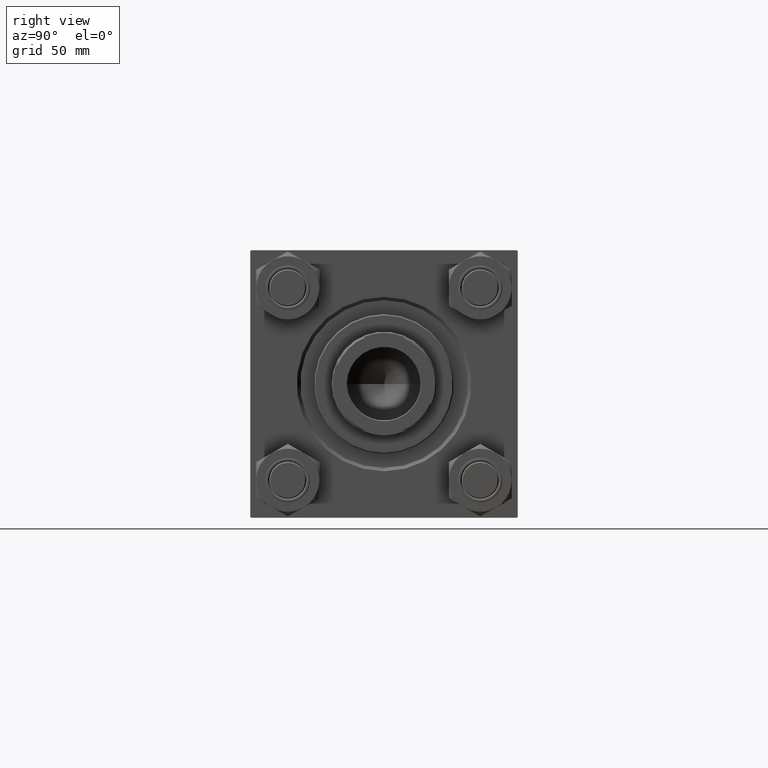
[diagram: clean part render]
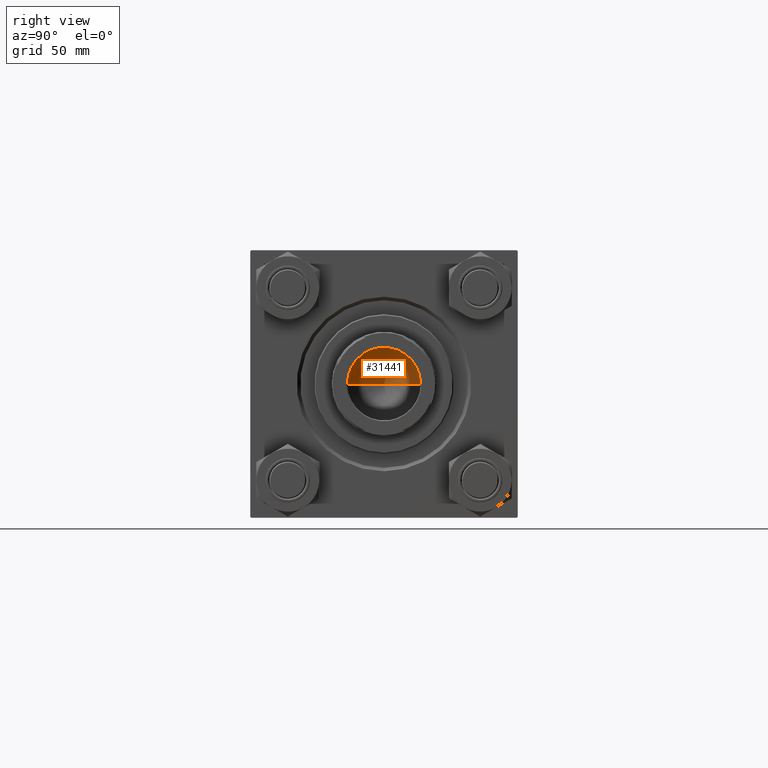
[diagram: same view with one face highlighted and labeled with its STEP entity id]
A machine part, right view. The second image highlights one B-rep face of the part: STEP entity #31441.
In plain terms, the highlighted conical surface has half-angle 59 deg.
Its self-contained STEP definition (entity closure, byte-faithful):
#1181 = VERTEX_POINT ( 'NONE', #6339 ) ;
#2189 = DIRECTION ( 'NONE',  ( -0.000000000000000000, -0.000000000000000000, 1.000000000000000000 ) ) ;
#2468 = DIRECTION ( 'NONE',  ( -0.8571673007021115565, 1.049727191138617710E-16, 0.5150380749100554878 ) ) ;
#3708 = CARTESIAN_POINT ( 'NONE',  ( 15.74999999999998934, 0.000000000000000000, 111.0000000000000000 ) ) ;
#6339 = CARTESIAN_POINT ( 'NONE',  ( -1.584115414415908206E-14, 0.000000000000000000, 101.5364452503159072 ) ) ;
#6515 = LINE ( 'NONE', #25840, #12413 ) ;
#6976 = CARTESIAN_POINT ( 'NONE',  ( 0.000000000000000000, 0.000000000000000000, 111.0000000000000000 ) ) ;
#8258 = EDGE_CURVE ( 'NONE', #23379, #30489, #14716, .T. ) ;
#8685 = LINE ( 'NONE', #23960, #31248 ) ;
#9306 = CARTESIAN_POINT ( 'NONE',  ( 0.000000000000000000, 0.000000000000000000, 111.0000000000000000 ) ) ;
#9740 = AXIS2_PLACEMENT_3D ( 'NONE', #9306, #2189, #44840 ) ;
#11040 = EDGE_LOOP ( 'NONE', ( #37074, #40985, #41466 ) ) ;
#11168 = EDGE_CURVE ( 'NONE', #1181, #23379, #6515, .T. ) ;
#12413 = VECTOR ( 'NONE', #2468, 1000.000000000000000 ) ;
#13602 = FACE_OUTER_BOUND ( 'NONE', #11040, .T. ) ;
#14716 = CIRCLE ( 'NONE', #21218, 15.74999999999998934 ) ;
#17400 = DIRECTION ( 'NONE',  ( -0.000000000000000000, -0.000000000000000000, 1.000000000000000000 ) ) ;
#21218 = AXIS2_PLACEMENT_3D ( 'NONE', #6976, #17400, #29360 ) ;
#23379 = VERTEX_POINT ( 'NONE', #43643 ) ;
#23960 = CARTESIAN_POINT ( 'NONE',  ( 15.74999999999998934, 0.000000000000000000, 111.0000000000000000 ) ) ;
#25840 = CARTESIAN_POINT ( 'NONE',  ( -15.74999999999998934, 1.928818708657080161E-15, 111.0000000000000000 ) ) ;
#29360 = DIRECTION ( 'NONE',  ( 1.000000000000000000, 0.000000000000000000, 0.000000000000000000 ) ) ;
#30489 = VERTEX_POINT ( 'NONE', #3708 ) ;
#31248 = VECTOR ( 'NONE', #39426, 1000.000000000000000 ) ;
#31441 = ADVANCED_FACE ( 'NONE', ( #13602 ), #49475, .F. ) ;
#37074 = ORIENTED_EDGE ( 'NONE', *, *, #46721, .F. ) ;
#39426 = DIRECTION ( 'NONE',  ( 0.8571673007021115565, 0.000000000000000000, 0.5150380749100554878 ) ) ;
#40985 = ORIENTED_EDGE ( 'NONE', *, *, #11168, .T. ) ;
#41466 = ORIENTED_EDGE ( 'NONE', *, *, #8258, .T. ) ;
#43643 = CARTESIAN_POINT ( 'NONE',  ( -15.74999999999998934, 1.928818708657080161E-15, 111.0000000000000000 ) ) ;
#44840 = DIRECTION ( 'NONE',  ( 1.000000000000000000, 0.000000000000000000, 0.000000000000000000 ) ) ;
#46721 = EDGE_CURVE ( 'NONE', #1181, #30489, #8685, .T. ) ;
#49475 = CONICAL_SURFACE ( 'NONE', #9740, 15.74999999999998934, 1.029744258676652979 ) ;